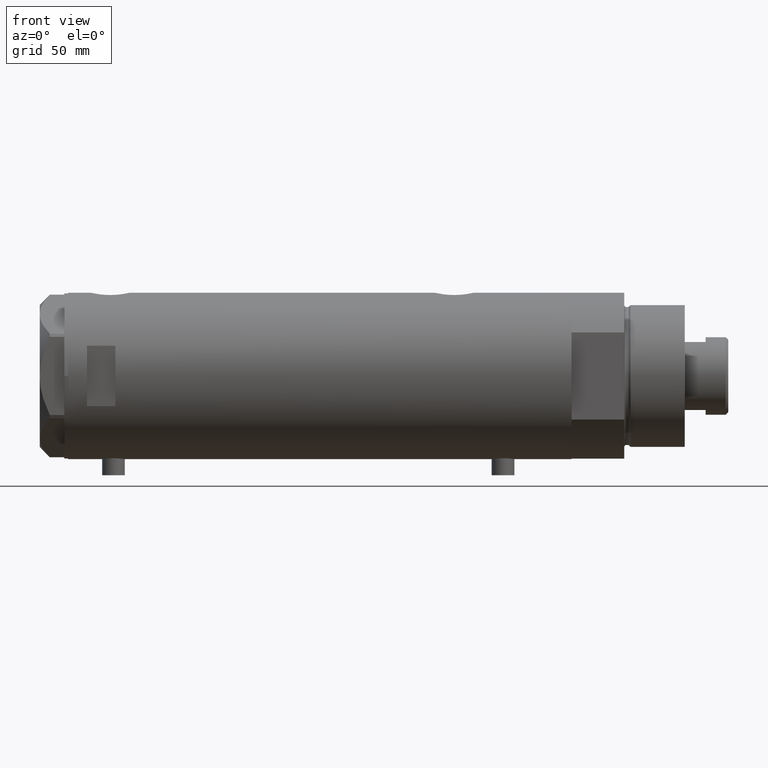
[diagram: clean part render]
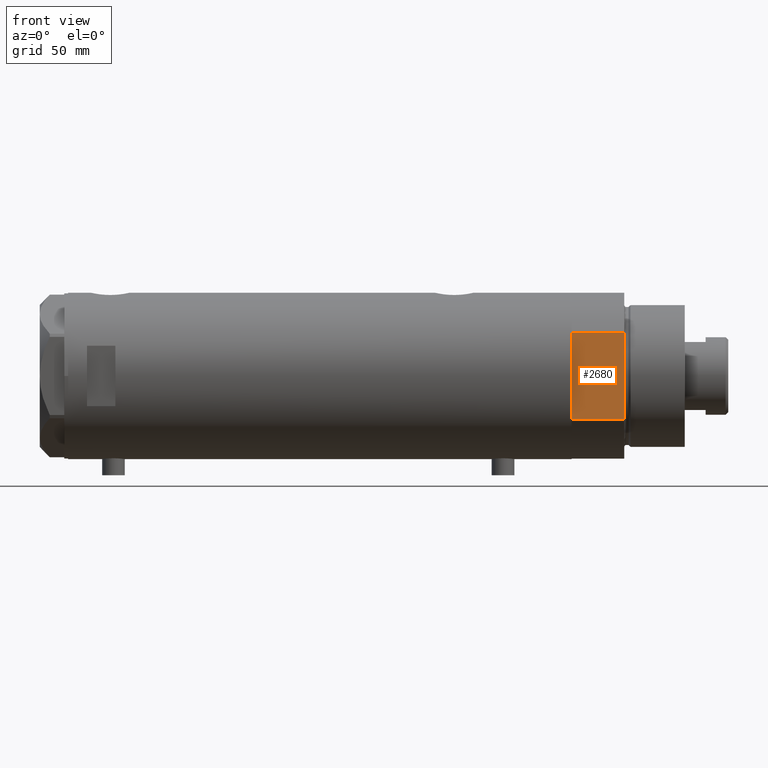
[diagram: same view with one face highlighted and labeled with its STEP entity id]
A machine part, front view. The second image highlights one B-rep face of the part: STEP entity #2680.
In plain terms, the highlighted planar face has unit normal (-0, 1, 0).
Its self-contained STEP definition (entity closure, byte-faithful):
#105 = ORIENTED_EDGE ( 'NONE', *, *, #577, .T. ) ;
#126 = CARTESIAN_POINT ( 'NONE',  ( 23.01629857296780557, -37.50000000000000000, 0.000000000000000000 ) ) ;
#176 = VECTOR ( 'NONE', #4362, 1000.000000000000000 ) ;
#226 = CARTESIAN_POINT ( 'NONE',  ( -23.01629857296780557, -37.50000000000000000, 0.000000000000000000 ) ) ;
#260 = ORIENTED_EDGE ( 'NONE', *, *, #2646, .F. ) ;
#309 = CARTESIAN_POINT ( 'NONE',  ( -23.01629857296780557, -37.50000000000000000, 0.000000000000000000 ) ) ;
#368 = EDGE_CURVE ( 'NONE', #1417, #554, #1301, .T. ) ;
#446 = DIRECTION ( 'NONE',  ( -1.000000000000000000, -0.000000000000000000, -0.000000000000000000 ) ) ;
#508 = EDGE_CURVE ( 'NONE', #3432, #1417, #2424, .T. ) ;
#512 = CARTESIAN_POINT ( 'NONE',  ( -23.01629857296780557, -37.50000000000000000, 27.89999999999999858 ) ) ;
#554 = VERTEX_POINT ( 'NONE', #2548 ) ;
#577 = EDGE_CURVE ( 'NONE', #554, #1170, #2597, .T. ) ;
#918 = DIRECTION ( 'NONE',  ( 0.000000000000000000, -0.000000000000000000, 1.000000000000000000 ) ) ;
#947 = ORIENTED_EDGE ( 'NONE', *, *, #3610, .F. ) ;
#1033 = AXIS2_PLACEMENT_3D ( 'NONE', #226, #3740, #918 ) ;
#1054 = VERTEX_POINT ( 'NONE', #1126 ) ;
#1088 = LINE ( 'NONE', #2839, #3321 ) ;
#1091 = CARTESIAN_POINT ( 'NONE',  ( 23.01629857296780557, -37.50000000000000000, 0.000000000000000000 ) ) ;
#1126 = CARTESIAN_POINT ( 'NONE',  ( 13.91941090707505957, -37.50000000000000000, 0.000000000000000000 ) ) ;
#1170 = VERTEX_POINT ( 'NONE', #1538 ) ;
#1175 = VECTOR ( 'NONE', #2822, 1000.000000000000000 ) ;
#1301 = LINE ( 'NONE', #4116, #1175 ) ;
#1308 = CARTESIAN_POINT ( 'NONE',  ( -23.01629857296780557, -37.50000000000000000, 0.000000000000000000 ) ) ;
#1417 = VERTEX_POINT ( 'NONE', #2317 ) ;
#1472 = CARTESIAN_POINT ( 'NONE',  ( -23.01629857296780557, -37.50000000000000000, 0.000000000000000000 ) ) ;
#1520 = LINE ( 'NONE', #1472, #176 ) ;
#1528 = EDGE_CURVE ( 'NONE', #1054, #3698, #1088, .T. ) ;
#1538 = CARTESIAN_POINT ( 'NONE',  ( -23.01629857296780557, -37.50000000000000000, 27.89999999999999858 ) ) ;
#1774 = VERTEX_POINT ( 'NONE', #309 ) ;
#1881 = ORIENTED_EDGE ( 'NONE', *, *, #1528, .F. ) ;
#2090 = DIRECTION ( 'NONE',  ( -0.000000000000000000, -0.000000000000000000, 1.000000000000000000 ) ) ;
#2119 = DIRECTION ( 'NONE',  ( -1.000000000000000000, -0.000000000000000000, -0.000000000000000000 ) ) ;
#2317 = CARTESIAN_POINT ( 'NONE',  ( 23.01629857296780557, -37.50000000000000000, 27.89999999999999858 ) ) ;
#2318 = CARTESIAN_POINT ( 'NONE',  ( -23.01629857296780557, -37.50000000000000000, 0.000000000000000000 ) ) ;
#2390 = CARTESIAN_POINT ( 'NONE',  ( -13.91941090707505957, -37.50000000000000000, 0.000000000000000000 ) ) ;
#2424 = LINE ( 'NONE', #1091, #2793 ) ;
#2493 = DIRECTION ( 'NONE',  ( -0.000000000000000000, -0.000000000000000000, 1.000000000000000000 ) ) ;
#2548 = CARTESIAN_POINT ( 'NONE',  ( 0.000000000000000000, -37.50000000000000000, 27.89999999999999858 ) ) ;
#2597 = LINE ( 'NONE', #512, #3905 ) ;
#2646 = EDGE_CURVE ( 'NONE', #1774, #1170, #4472, .T. ) ;
#2680 = ADVANCED_FACE ( 'NONE', ( #4113 ), #2811, .F. ) ;
#2736 = VECTOR ( 'NONE', #4105, 1000.000000000000000 ) ;
#2793 = VECTOR ( 'NONE', #2493, 1000.000000000000000 ) ;
#2811 = PLANE ( 'NONE',  #1033 ) ;
#2822 = DIRECTION ( 'NONE',  ( -1.000000000000000000, -0.000000000000000000, -0.000000000000000000 ) ) ;
#2839 = CARTESIAN_POINT ( 'NONE',  ( -23.01629857296780557, -37.50000000000000000, 0.000000000000000000 ) ) ;
#2875 = EDGE_LOOP ( 'NONE', ( #4520, #105, #260, #3416, #1881, #947, #3179 ) ) ;
#2950 = VECTOR ( 'NONE', #2090, 1000.000000000000000 ) ;
#3060 = LINE ( 'NONE', #1308, #2736 ) ;
#3179 = ORIENTED_EDGE ( 'NONE', *, *, #508, .T. ) ;
#3321 = VECTOR ( 'NONE', #2119, 1000.000000000000000 ) ;
#3416 = ORIENTED_EDGE ( 'NONE', *, *, #3737, .F. ) ;
#3432 = VERTEX_POINT ( 'NONE', #126 ) ;
#3610 = EDGE_CURVE ( 'NONE', #3432, #1054, #3060, .T. ) ;
#3698 = VERTEX_POINT ( 'NONE', #2390 ) ;
#3737 = EDGE_CURVE ( 'NONE', #3698, #1774, #1520, .T. ) ;
#3740 = DIRECTION ( 'NONE',  ( -0.000000000000000000, 1.000000000000000000, 0.000000000000000000 ) ) ;
#3905 = VECTOR ( 'NONE', #446, 1000.000000000000000 ) ;
#4105 = DIRECTION ( 'NONE',  ( -1.000000000000000000, -0.000000000000000000, -0.000000000000000000 ) ) ;
#4113 = FACE_OUTER_BOUND ( 'NONE', #2875, .T. ) ;
#4116 = CARTESIAN_POINT ( 'NONE',  ( -23.01629857296780557, -37.50000000000000000, 27.89999999999999858 ) ) ;
#4362 = DIRECTION ( 'NONE',  ( -1.000000000000000000, -0.000000000000000000, -0.000000000000000000 ) ) ;
#4472 = LINE ( 'NONE', #2318, #2950 ) ;
#4520 = ORIENTED_EDGE ( 'NONE', *, *, #368, .T. ) ;